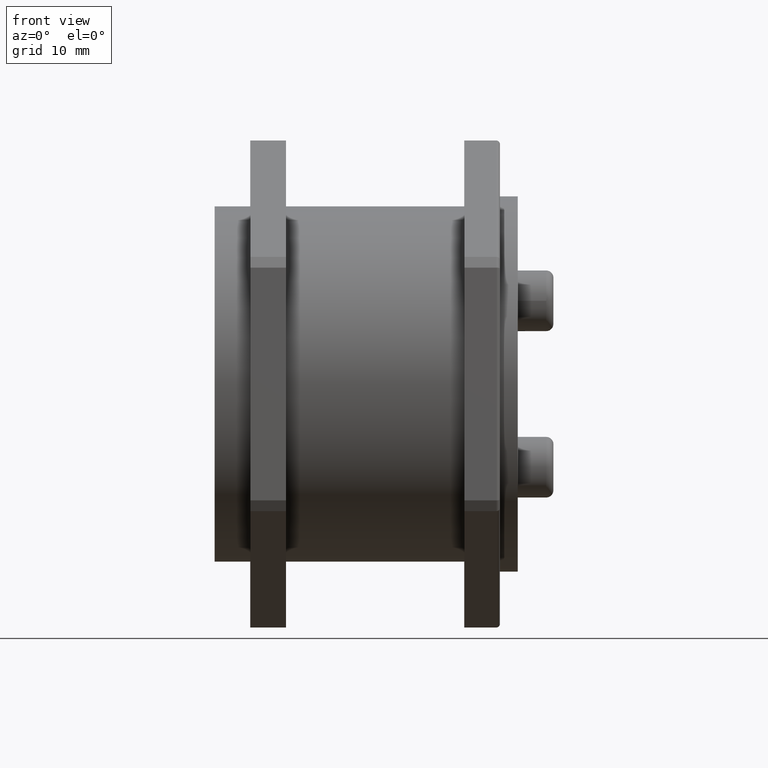
[diagram: clean part render]
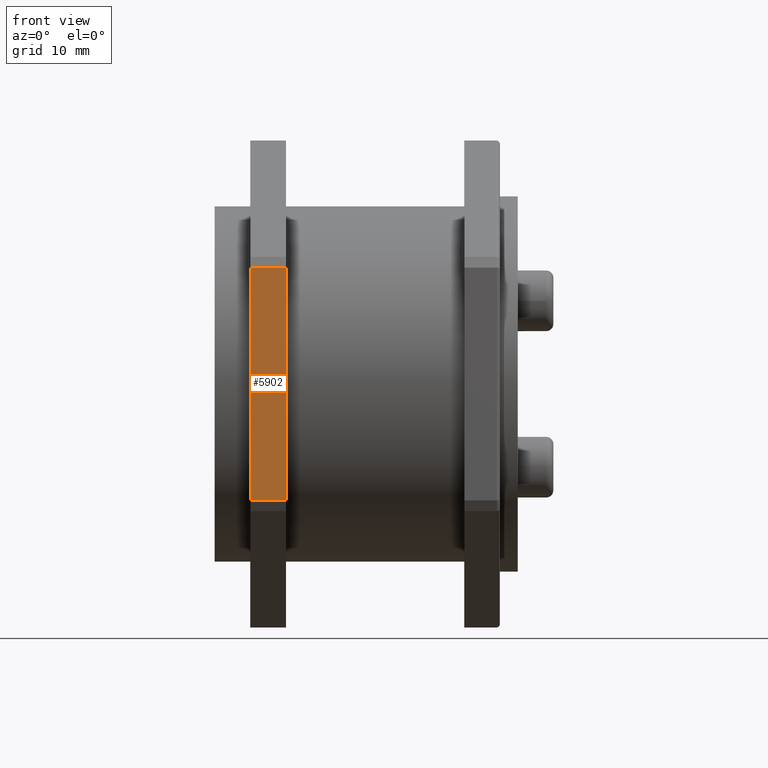
[diagram: same view with one face highlighted and labeled with its STEP entity id]
A machine part, front view. The second image highlights one B-rep face of the part: STEP entity #5902.
In plain terms, the highlighted planar face has unit normal (-0, -1, 0).
Its self-contained STEP definition (entity closure, byte-faithful):
#5846=CARTESIAN_POINT('',(7.999829454600103,-33.201832606973923,35.0));
#5847=VERTEX_POINT('',#5846);
#5854=CARTESIAN_POINT('',(7.999829454600103,-33.201832606973923,30.0));
#5855=VERTEX_POINT('',#5854);
#5856=CARTESIAN_POINT('',(7.999829454600103,-33.201832606973923,30.0));
#5857=DIRECTION('',(0.0,0.0,1.0));
#5858=VECTOR('',#5857,5.0);
#5859=LINE('',#5856,#5858);
#5860=EDGE_CURVE('',#5855,#5847,#5859,.T.);
#5872=CARTESIAN_POINT('',(7.999829454600103,-33.201832606973923,30.0));
#5873=DIRECTION('',(-0.258819026177843,-0.965925831359920,0.0));
#5874=DIRECTION('',(0.0,0.0,-1.0));
#5875=AXIS2_PLACEMENT_3D('',#5872,#5873,#5874);
#5876=PLANE('',#5875);
#5877=CARTESIAN_POINT('',(-23.528971207851836,-24.753716593219153,35.0));
#5878=VERTEX_POINT('',#5877);
#5879=CARTESIAN_POINT('',(7.999829454600103,-33.201832606973923,35.0));
#5880=DIRECTION('',(-0.965925831359920,0.258819026177843,0.0));
#5881=VECTOR('',#5880,32.641016151377542);
#5882=LINE('',#5879,#5881);
#5883=EDGE_CURVE('',#5847,#5878,#5882,.T.);
#5884=ORIENTED_EDGE('',*,*,#5883,.T.);
#5885=CARTESIAN_POINT('',(-23.528971207851836,-24.753716593219153,30.0));
#5886=VERTEX_POINT('',#5885);
#5887=CARTESIAN_POINT('',(-23.528971207851836,-24.753716593219153,30.0));
#5888=DIRECTION('',(0.0,0.0,1.0));
#5889=VECTOR('',#5888,5.0);
#5890=LINE('',#5887,#5889);
#5891=EDGE_CURVE('',#5886,#5878,#5890,.T.);
#5892=ORIENTED_EDGE('',*,*,#5891,.F.);
#5893=CARTESIAN_POINT('',(-23.528971207851836,-24.753716593219153,30.0));
#5894=DIRECTION('',(0.965925831359920,-0.258819026177843,0.0));
#5895=VECTOR('',#5894,32.641016151377542);
#5896=LINE('',#5893,#5895);
#5897=EDGE_CURVE('',#5886,#5855,#5896,.T.);
#5898=ORIENTED_EDGE('',*,*,#5897,.T.);
#5899=ORIENTED_EDGE('',*,*,#5860,.T.);
#5900=EDGE_LOOP('',(#5884,#5892,#5898,#5899));
#5901=FACE_OUTER_BOUND('',#5900,.T.);
#5902=ADVANCED_FACE('',(#5901),#5876,.T.);